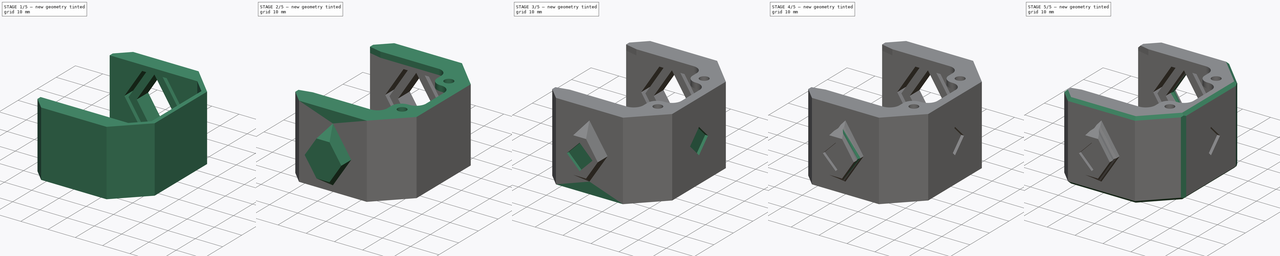
[diagram: build sequence overview — one tinted view per stage of 5, left to right]
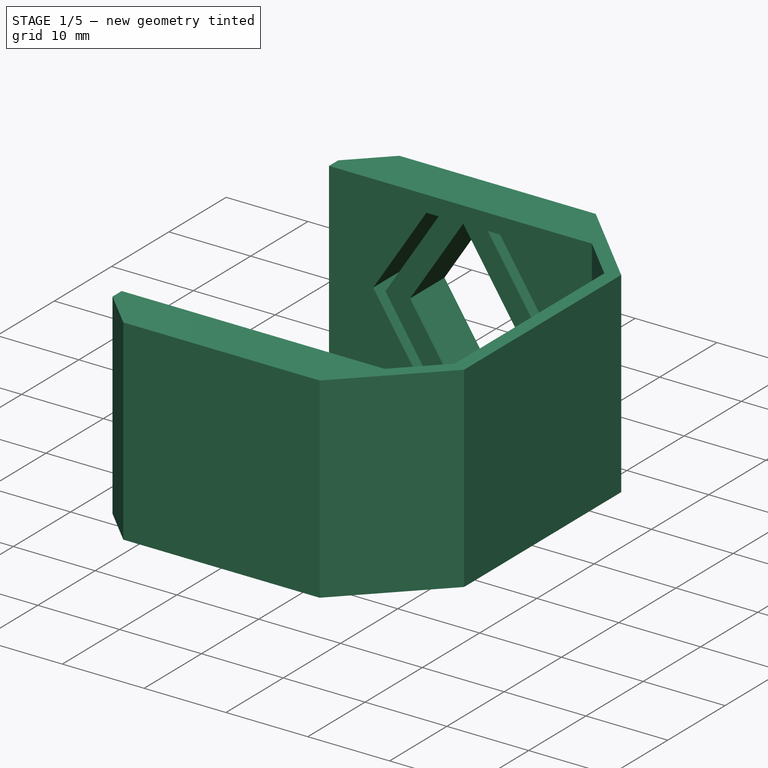
[diagram: stage 1 of 5 — iso view after this stage's code; geometry added in this stage tinted green]
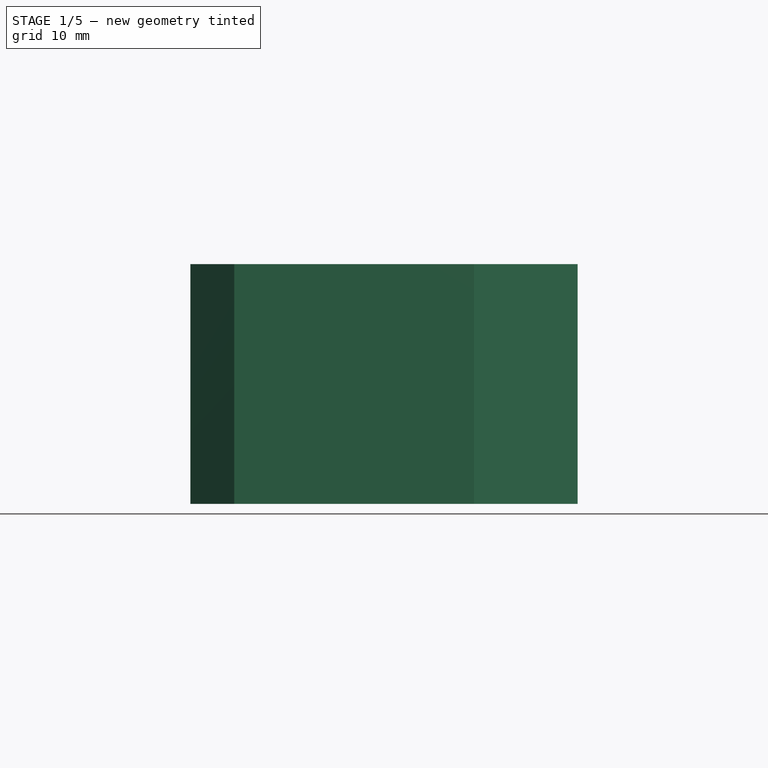
[diagram: stage 1 of 5 — front view after this stage's code; geometry added in this stage tinted green]
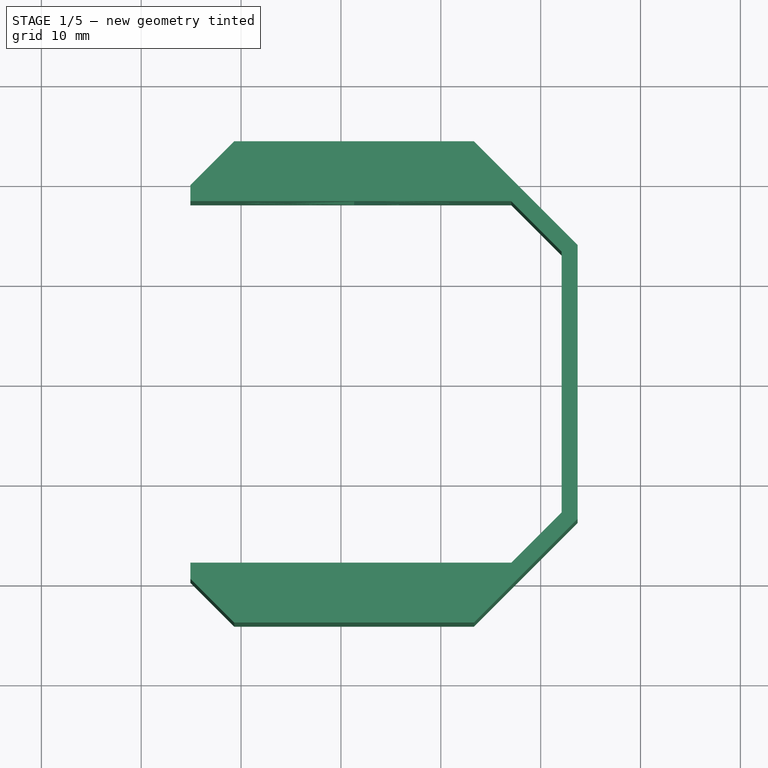
[diagram: stage 1 of 5 — top view after this stage's code; geometry added in this stage tinted green]
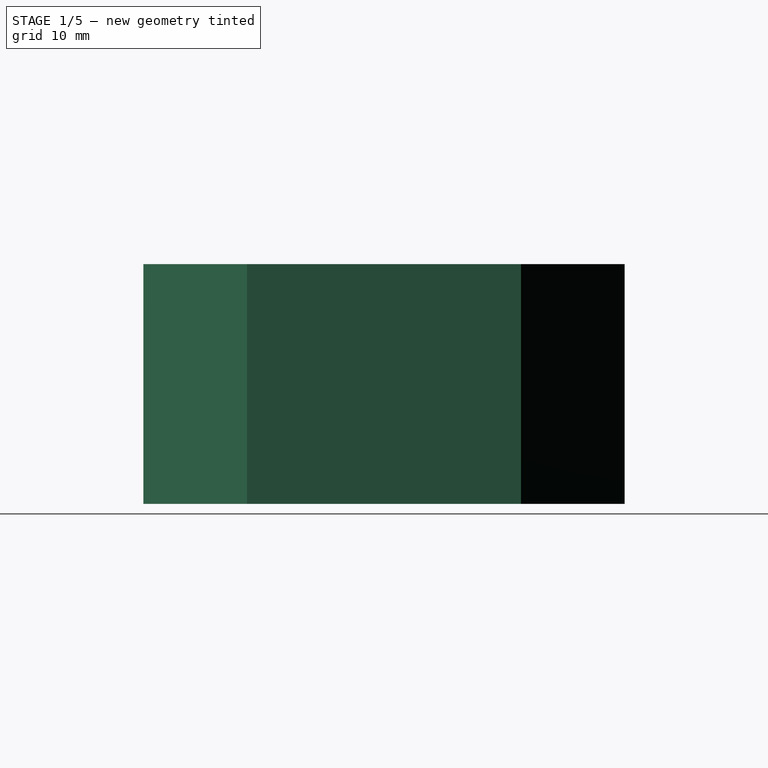
[diagram: stage 1 of 5 — right view after this stage's code; geometry added in this stage tinted green]
FCSTD DOCUMENT  (FreeCAD 1.1R20251031 (Git shallow))
Label: K93-10436-H7-L120_Tarantinorino_left
License: All rights reserved
LicenseURL: https://en.wikipedia.org/wiki/All_rights_reserved
objects: Sketcher::SketchObject×10, PartDesign::Chamfer×7, PartDesign::Pad×5, PartDesign::Pocket×5, App::FeaturePython×3, Part::Feature×3, PartDesign::Mirrored×2, App::Point×1, App::DocumentObjectGroupPython×1, App::VarSet×1, PartDesign::Fillet×1, PartDesign::Body×1
note: 82 computed .brp shape members not serialized (recipe doc carries the construction recipe); baked Part::Feature solids carry a one-line shape summary decoded from their .brp

FEATURE [App::Point] Origin001
  Role = Origin
FEATURE [App::FeaturePython] Layer  label="0"  # WARN: FeaturePython — macro-defined, semantics opaque (R4)
FEATURE [App::FeaturePython] Layer001  label="none"  # WARN: FeaturePython — macro-defined, semantics opaque (R4)
FEATURE [App::FeaturePython] Layer002  label="Shape2DView"  # WARN: FeaturePython — macro-defined, semantics opaque (R4)
FEATURE [App::DocumentObjectGroupPython] LayerContainer  label="Layers"  # scripted group (container) (typed FeaturePython)
  Group = -> [Layer,Layer002,Layer001]
FEATURE [Part::Feature] Wire
  shape: bbox 3.2 x 3.2 x 2e-07 mm, 0 faces, 0 solids (baked)
FEATURE [Part::Feature] Wire001
  shape: bbox 3.2 x 3.2 x 2e-07 mm, 0 faces, 0 solids (baked)
FEATURE [Part::Feature] Wire002
  shape: bbox 98.17 x 35.99 x 2e-07 mm, 0 faces, 0 solids (baked)
FEATURE [App::VarSet] VarSet
  depth_feet = 24
  gap = 0.1
  thickness_wall = 1.6
FEATURE [Sketcher::SketchObject] Sketch  label="panel_reference"
  ArcFitTolerance = 1e-06
  ExternalTypes = [0]
  FullyConstrained = true
  MakeInternals = false
  expr: Constraints[23] = VarSet.gap
  expr: Constraints[24] = VarSet.thickness_wall
  expr: Constraints[30] = VarSet.gap
  expr: Constraints[32] = VarSet.thickness_wall
  expr: Constraints[42] = VarSet.thickness_wall
  expr: Constraints[46] = VarSet.gap
  sketch-geometry (15):
    g0: LineSegment [constr] StartX=52.0042 StartY=0 StartZ=0 EndX=52.0042 EndY=12.17 EndZ=0
    g1: ArcOfCircle [constr] CenterX=50.0143 CenterY=12.1873 CenterZ=0 NormalX=0 NormalY=0 NormalZ=1 AngleXU=0 Radius=1.99 StartAngle=6.27451 EndAngle=7.06367
    g2: LineSegment [constr] StartX=51.4283 StartY=13.5875 StartZ=0 EndX=47.5958 EndY=17.42 EndZ=0
    g3: ArcOfCircle [constr] CenterX=46.1874 CenterY=16 CenterZ=0 NormalX=0 NormalY=0 NormalZ=1 AngleXU=0 Radius=2 StartAngle=0.789489 EndAngle=1.57449
    g4: LineSegment [constr] StartX=46.18 StartY=18 StartZ=0 EndX=0 EndY=18 EndZ=0
    g5: Circle [constr] CenterX=47.32 CenterY=11.94 CenterZ=0 NormalX=0 NormalY=0 NormalZ=1 AngleXU=0 Radius=1.61
    g6: LineSegment StartX=52.1042 StartY=0 StartZ=0 EndX=53.7042 EndY=0 EndZ=0
    g7: LineSegment StartX=52.1042 StartY=0 StartZ=0 EndX=52.1042 EndY=13.053 EndZ=0
    g8: LineSegment StartX=53.7042 StartY=0 StartZ=0 EndX=53.7042 EndY=13.7158 EndZ=0
    g9: LineSegment StartX=47.0572 StartY=18.1 StartZ=0 EndX=52.1042 EndY=13.053 EndZ=0
    g10: LineSegment StartX=43.32 StartY=24.1 StartZ=0 EndX=53.7042 EndY=13.7158 EndZ=0
    g11: LineSegment StartX=47.0572 StartY=18.1 StartZ=0 EndX=14.92 EndY=18.1 EndZ=0
    g12: LineSegment StartX=14.92 StartY=18.1 StartZ=0 EndX=14.92 EndY=19.7 EndZ=0
    g13: LineSegment StartX=14.92 StartY=19.7 StartZ=0 EndX=19.32 EndY=24.1 EndZ=0
    g14: LineSegment StartX=19.32 StartY=24.1 StartZ=0 EndX=43.32 EndY=24.1 EndZ=0
  constraints (48):
    c: Coincident(g3,g4)
    c: Coincident(g2,g3)
    c: Coincident(g1,g2)
    c: Coincident(g0,g1)
    c: PointOnObject(g4,g-2)
    c: Horizontal(g4)
    c: PointOnObject(g6,g-1)
    c: PointOnObject(g6,g-1)
    c: Distance(g4,g-1) = 18
    c: Vertical(g0)
    c: DistanceY(g-1,g0) = 12.17
    c: Distance(g1,g0) = 1.53
    c: Angle(g2,g0) = 2.35619
    c: Distance(g2,g2) = 5.42
    c: Distance(g3,g2) = 1.53
    c: DistanceX(g4,g4) = 46.18
    c: DistanceY(g-1,g2) = 17.42
    c: DistanceY(g-1,g5) = 11.94
    c: Diameter(g5) = 3.22
    c: DistanceX(g-1,g5) = 47.32
    c: Radius(g3) = 2
    c: Radius(g1) = 1.99
    c: PointOnObject(g0,g-1)
    c: Distance(g6,g0) = 0.1
    c: DistanceX(g6,g6) = 1.6
    c: Coincident(g7,g6)
    c: Vertical(g7)
    c: Coincident(g8,g6)
    c: Vertical(g8)
    c: Parallel(g2,g9)
    c: Distance(g9,g2) = 0.1
    c: Parallel(g9,g10)
    c: Distance(g10,g9) = 1.6
    c: Coincident(g9,g7)
    c: Coincident(g10,g8)
    c: Horizontal(g11)
    c: Coincident(g9,g11)
    c: Coincident(g12,g11)
    c: Vertical(g12)
    c: Coincident(g13,g12)
    c: Coincident(g14,g13)
    c: Horizontal(g14)
    c: Distance(g12,g12) = 1.6
    c: Angle(g12,g13) = 2.35619
    c: Distance(g11,g14) = 6
    c: Coincident(g10,g14)
    c: Distance(g11,g4) = 0.1
    c: DistanceX(g14,g14) = 24
FEATURE [PartDesign::Pad] Pad
  Direction = (0,0,1)
  Length = 24
  Length2 = 10
  Profile = -> Sketch
  ReferenceAxis = -> Sketch [N_Axis]
  Refine = true
  Reversed = true
  SideType = 0
  Suppressed = false
  Type = 0
  Type2 = 0
  expr: Length = VarSet.depth_feet
FEATURE [Sketcher::SketchObject] Sketch001
  ArcFitTolerance = 1e-06
  AttachmentSupport = -> [Pad]
  ExternalGeometry = -> [Pad]
  ExternalTypes = [0,0,0,0]
  FullyConstrained = true
  MakeInternals = false
  MapMode = 5
  Placement = pos=(0,24.1,0) rot=(0,0.707107,0.707107;3.14159rad)
  sketch-geometry (20):
    g0: GeomPoint [constr] X=-31.32 Y=0 Z=0
    g1: GeomPoint [constr] X=-43.32 Y=-12 Z=0
    g2: LineSegment [constr] StartX=-43.32 StartY=-12 StartZ=0 EndX=-19.32 EndY=-12 EndZ=0
    g3: LineSegment [constr] StartX=-31.32 StartY=0 StartZ=0 EndX=-31.32 EndY=-24 EndZ=0
    g4: GeomPoint [constr] X=-31.32 Y=-12 Z=0
    g5: LineSegment [constr] StartX=-43.32 StartY=-2 StartZ=0 EndX=-19.32 EndY=-2 EndZ=0
    g6: LineSegment [constr] StartX=-43.32 StartY=-22 StartZ=0 EndX=-19.32 EndY=-22 EndZ=0
    g7: LineSegment [constr] StartX=-42.32 StartY=-2 StartZ=0 EndX=-42.32 EndY=-22 EndZ=0
    g8: LineSegment [constr] StartX=-21.32 StartY=-2 StartZ=0 EndX=-21.32 EndY=-22 EndZ=0
    g9: GeomPoint [constr] X=-42.32 Y=-12 Z=0
    g10: GeomPoint [constr] X=-21.32 Y=-12 Z=0
    g11: LineSegment StartX=-31.32 StartY=-2 StartZ=0 EndX=-37.82 EndY=-12 EndZ=0
    g12: LineSegment StartX=-37.82 StartY=-12 StartZ=0 EndX=-31.32 EndY=-22 EndZ=0
    g13: LineSegment StartX=-31.32 StartY=-22 StartZ=0 EndX=-31.32 EndY=-2 EndZ=0
    g14: LineSegment StartX=-35.82 StartY=-2 StartZ=0 EndX=-34.32 EndY=-2 EndZ=0
    g15: LineSegment StartX=-34.32 StartY=-2 StartZ=0 EndX=-40.82 EndY=-12 EndZ=0
    g16: LineSegment StartX=-40.82 StartY=-12 StartZ=0 EndX=-34.32 EndY=-22 EndZ=0
    g17: LineSegment StartX=-34.32 StartY=-22 StartZ=0 EndX=-35.82 EndY=-22 EndZ=0
    g18: LineSegment StartX=-35.82 StartY=-22 StartZ=0 EndX=-42.32 EndY=-12 EndZ=0
    g19: LineSegment StartX=-42.32 StartY=-12 StartZ=0 EndX=-35.82 EndY=-2 EndZ=0
  constraints (52):
    c: Symmetric(g-4,g-4,g0)
    c: Symmetric(g-3,g-3,g1)
    c: Coincident(g2,g1)
    c: Symmetric(g-5,g-5,g2)
    c: Coincident(g3,g0)
    c: Symmetric(g-6,g-6,g3)
    c: Symmetric(g3,g3,g4)
    c: PointOnObject(g5,g-3)
    c: PointOnObject(g5,g-5)
    c: Horizontal(g5)
    c: PointOnObject(g6,g-3)
    c: PointOnObject(g6,g-5)
    c: Horizontal(g6)
    c: Distance(g6,g-6) = 2
    c: Distance(g-4,g5) = 2
    c: PointOnObject(g7,g5)
    c: PointOnObject(g7,g6)
    c: Vertical(g7)
    c: PointOnObject(g8,g5)
    c: PointOnObject(g8,g6)
    c: Vertical(g8)
    c: Distance(g-5,g8) = 2
    c: Distance(g7,g-3) = 1
    c: Symmetric(g7,g7,g9)
    c: Symmetric(g8,g8,g10)
    c: Symmetric(g5,g5,g11)
    c: PointOnObject(g11,g2)
    c: Coincident(g12,g11)
    c: PointOnObject(g12,g3)
    c: Coincident(g13,g12)
    c: Coincident(g13,g11)
    c: PointOnObject(g14,g5)
    c: PointOnObject(g14,g5)
    c: Coincident(g15,g14)
    c: PointOnObject(g15,g2)
    c: Coincident(g16,g15)
    c: PointOnObject(g16,g6)
    c: Coincident(g17,g16)
    c: PointOnObject(g17,g6)
    c: Coincident(g18,g17)
    c: PointOnObject(g18,g2)
    c: Coincident(g19,g18)
    c: Coincident(g19,g14)
    c: Parallel(g11,g15)
    c: Parallel(g19,g15)
    c: Parallel(g12,g16)
    c: Parallel(g16,g18)
    c: PointOnObject(g12,g6)
    c: PointOnObject(g18,g7)
    c: Distance(g15,g9) = 1.5
    c: Distance(g11,g15) = 3
    c: Distance(g11,g4) = 6.5
FEATURE [PartDesign::Pocket] Pocket
  BaseFeature = -> Pad
  Direction = (0,-1,2e-16)
  Length = 9.3
  Length2 = 5
  Profile = -> Sketch001
  ReferenceAxis = -> Sketch001 [N_Axis]
  Refine = true
  SideType = 0
  Suppressed = false
  Type = 2
  Type2 = 0
FEATURE [PartDesign::Mirrored] Mirrored
  BaseFeature = -> Pocket
  MirrorPlane = -> Pocket [Face12]
  Originals = -> [Pocket]
  Refine = true
  Suppressed = false
  TransformMode = 0
FEATURE [PartDesign::Mirrored] Mirrored001
  BaseFeature = -> Mirrored
  MirrorPlane = -> Mirrored [Face1]
  Originals = -> [Pad]
  Refine = true
  Suppressed = false
  TransformMode = 0
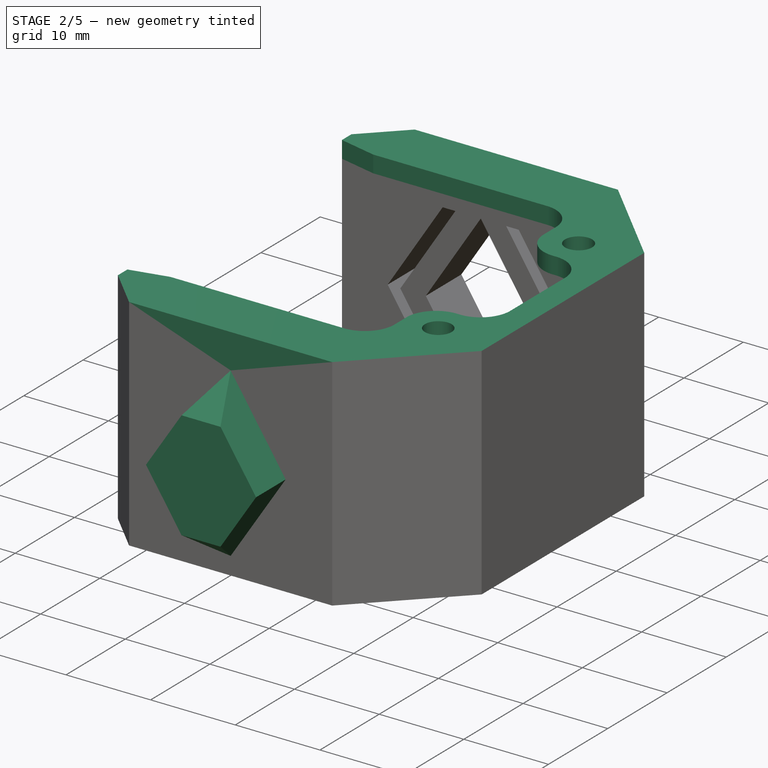
[diagram: stage 2 of 5 — iso view after this stage's code; geometry added in this stage tinted green]
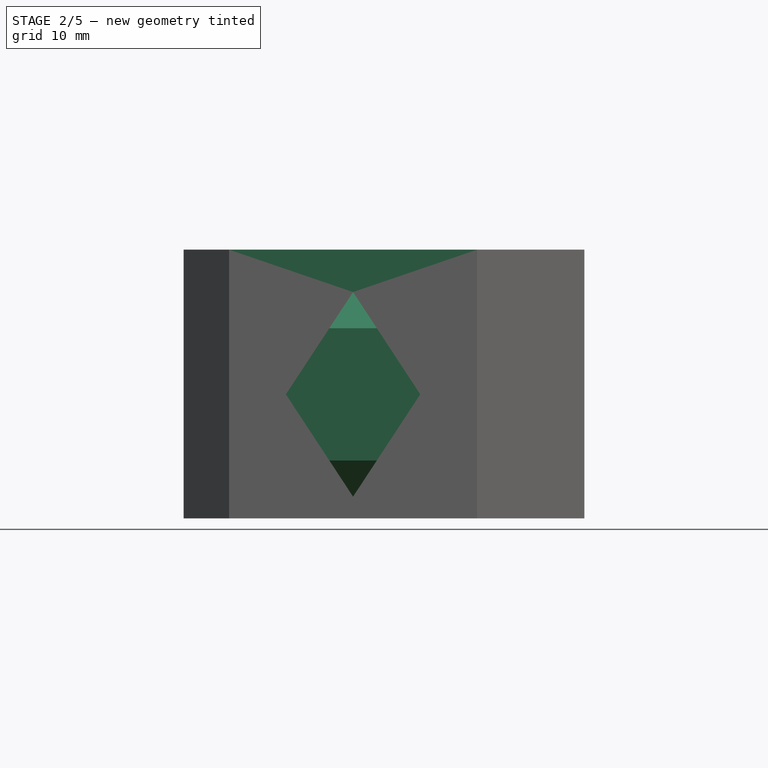
[diagram: stage 2 of 5 — front view after this stage's code; geometry added in this stage tinted green]
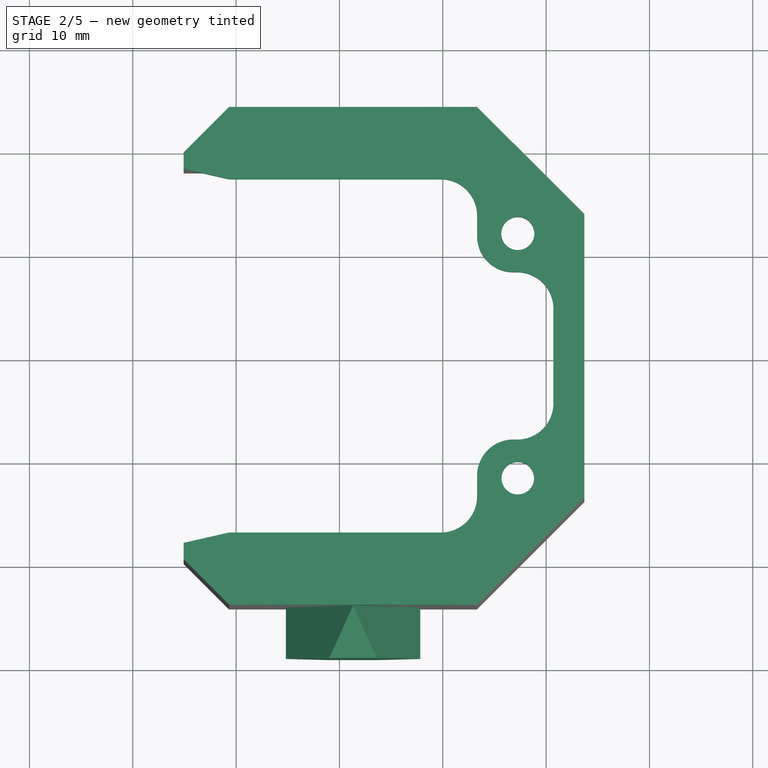
[diagram: stage 2 of 5 — top view after this stage's code; geometry added in this stage tinted green]
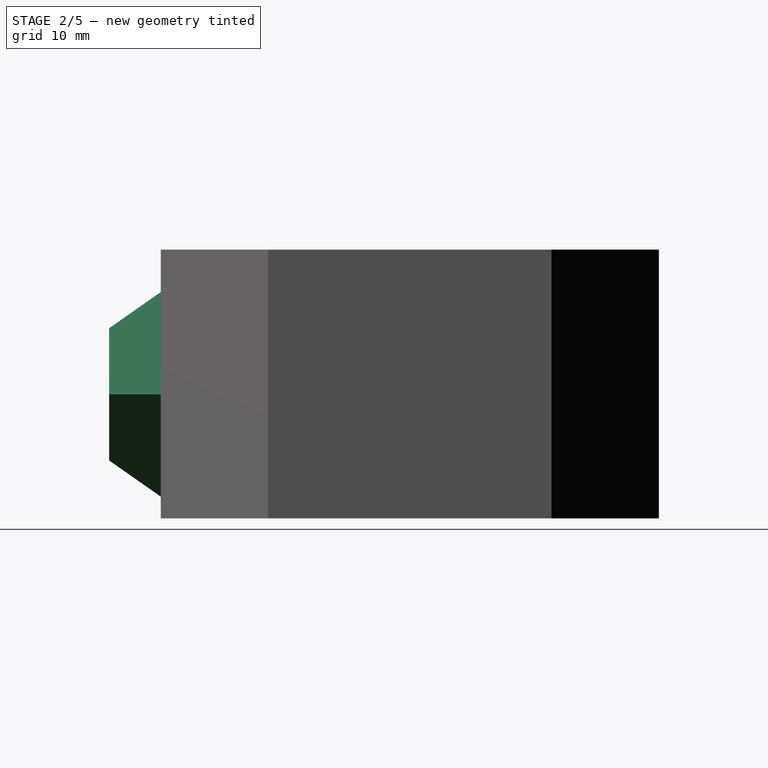
[diagram: stage 2 of 5 — right view after this stage's code; geometry added in this stage tinted green]
FEATURE [Sketcher::SketchObject] Sketch003
  ArcFitTolerance = 1e-06
  AttachmentSupport = -> [Mirrored001]
  ExternalGeometry = -> [Mirrored001]
  ExternalTypes = [0,0,0,0]
  FullyConstrained = true
  MakeInternals = false
  MapMode = 5
  Placement = pos=(0,-24.1,0) rot=(1,0,0;1.5708rad)
  sketch-geometry (10):
    g0: LineSegment [constr] StartX=21.52 StartY=0 StartZ=0 EndX=21.52 EndY=-24 EndZ=0
    g1: LineSegment [constr] StartX=41.12 StartY=0 StartZ=0 EndX=41.12 EndY=-24 EndZ=0
    g2: LineSegment [constr] StartX=19.32 StartY=-21.9 StartZ=0 EndX=43.32 EndY=-21.9 EndZ=0
    g3: LineSegment [constr] StartX=19.32 StartY=-2.1 StartZ=0 EndX=43.32 EndY=-2.1 EndZ=0
    g4: LineSegment [constr] StartX=21.52 StartY=-12 StartZ=0 EndX=41.12 EndY=-12 EndZ=0
    g5: LineSegment [constr] StartX=31.32 StartY=-2.1 StartZ=0 EndX=31.32 EndY=-21.9 EndZ=0
    g6: LineSegment StartX=24.82 StartY=-12 StartZ=0 EndX=31.32 EndY=-2.1 EndZ=0
    g7: LineSegment StartX=31.32 StartY=-2.1 StartZ=0 EndX=37.82 EndY=-12 EndZ=0
    g8: LineSegment StartX=24.82 StartY=-12 StartZ=0 EndX=31.32 EndY=-21.9 EndZ=0
    g9: LineSegment StartX=37.82 StartY=-12 StartZ=0 EndX=31.32 EndY=-21.9 EndZ=0
  constraints (30):
    c: PointOnObject(g0,g-4)
    c: PointOnObject(g0,g-6)
    c: Vertical(g0)
    c: PointOnObject(g1,g-4)
    c: PointOnObject(g1,g-6)
    c: Vertical(g1)
    c: PointOnObject(g2,g-3)
    c: PointOnObject(g2,g-5)
    c: Horizontal(g2)
    c: PointOnObject(g3,g-3)
    c: PointOnObject(g3,g-5)
    c: Horizontal(g3)
    c: Distance(g-6,g2) = 2.1
    c: Distance(g3,g-4) = 2.1
    c: Distance(g1,g-5) = 2.2
    c: Distance(g0,g-3) = 2.2
    c: Symmetric(g0,g0,g4)
    c: Symmetric(g1,g1,g4)
    c: Symmetric(g3,g3,g5)
    c: Symmetric(g2,g2,g5)
    c: PointOnObject(g6,g5)
    c: Coincident(g7,g6)
    c: Coincident(g9,g8)
    c: Symmetric(g6,g8,g4)
    c: Coincident(g9,g7)
    c: PointOnObject(g7,g4)
    c: Coincident(g6,g8)
    c: PointOnObject(g6,g3)
    c: Symmetric(g7,g6,g5)
    c: Distance(g7,g5) = 6.5
FEATURE [PartDesign::Pad] Pad002
  BaseFeature = -> Mirrored001
  Direction = (0,-1,2e-16)
  Length = 5
  Length2 = 10
  Profile = -> Sketch003
  ReferenceAxis = -> Sketch003 [N_Axis]
  Refine = true
  SideType = 0
  Suppressed = false
  Type = 0
  Type2 = 0
FEATURE [Sketcher::SketchObject] Sketch004
  ArcFitTolerance = 1e-06
  AttachmentSupport = -> [Origin]
  ExternalGeometry = -> [Pad002]
  ExternalTypes = [0,0,0,0]
  FullyConstrained = true
  MakeInternals = false
  MapMode = 5
  Placement = pos=(0,0,0) rot=(0.57735,0.57735,0.57735;2.0944rad)
  sketch-geometry (6):
    g0: LineSegment StartX=-24.1 StartY=-21.9 StartZ=0 EndX=-29.1 EndY=-18.399 EndZ=0
    g1: LineSegment StartX=-29.1 StartY=-18.399 StartZ=0 EndX=-29.1 EndY=-21.9 EndZ=0
    g2: LineSegment StartX=-29.1 StartY=-21.9 StartZ=0 EndX=-24.1 EndY=-21.9 EndZ=0
    g3: LineSegment StartX=-24.1 StartY=-2.1 StartZ=0 EndX=-29.1 EndY=-5.60104 EndZ=0
    g4: LineSegment StartX=-29.1 StartY=-2.1 StartZ=0 EndX=-29.1 EndY=-5.60104 EndZ=0
    g5: LineSegment StartX=-24.1 StartY=-2.1 StartZ=0 EndX=-29.1 EndY=-2.1 EndZ=0
  constraints (14):
    c: Coincident(g0,g-3)
    c: PointOnObject(g0,g-4)
    c: Coincident(g1,g0)
    c: Coincident(g1,g-4)
    c: Coincident(g2,g1)
    c: Coincident(g2,g0)
    c: Angle(g0,g2) = 0.610865
    c: Coincident(g3,g-5)
    c: PointOnObject(g3,g-6)
    c: Coincident(g4,g-6)
    c: Coincident(g4,g3)
    c: Coincident(g5,g3)
    c: Coincident(g5,g4)
    c: Angle(g5,g3) = 0.610865
FEATURE [PartDesign::Pocket] Pocket001
  BaseFeature = -> Pad002
  Direction = (-1,0,0)
  Length = 40
  Length2 = 5
  Profile = -> Sketch004
  ReferenceAxis = -> Sketch004 [N_Axis]
  Refine = true
  Reversed = true
  SideType = 0
  Suppressed = false
  Type = 0
  Type2 = 0
FEATURE [Sketcher::SketchObject] Sketch007  label="Frontface"
  ArcFitTolerance = 1e-06
  ExternalTypes = [0,0,0,0,0,0,0,0,0]
  FullyConstrained = true
  MakeInternals = false
  sketch-geometry (11):
    g0: LineSegment StartX=14.92 StartY=18.1 StartZ=0 EndX=19.32 EndY=17.1 EndZ=0
    g1: LineSegment StartX=19.32 StartY=17.1 StartZ=0 EndX=43.32 EndY=17.1 EndZ=0
    g2: LineSegment StartX=43.32 StartY=17.1 StartZ=0 EndX=43.32 EndY=8.1 EndZ=0
    g3: LineSegment StartX=43.32 StartY=8.1 StartZ=0 EndX=50.7042 EndY=8.1 EndZ=0
    g4: LineSegment StartX=50.7042 StartY=8.1 StartZ=0 EndX=50.7042 EndY=-8.1 EndZ=0
    g5: LineSegment StartX=50.7042 StartY=-8.1 StartZ=0 EndX=43.32 EndY=-8.1 EndZ=0
    g6: LineSegment StartX=43.32 StartY=-8.1 StartZ=0 EndX=43.32 EndY=-17.1 EndZ=0
    g7: LineSegment StartX=43.32 StartY=-17.1 StartZ=0 EndX=19.32 EndY=-17.1 EndZ=0
    g8: LineSegment StartX=19.32 StartY=-17.1 StartZ=0 EndX=14.92 EndY=-18.1 EndZ=0
    g9: Circle CenterX=47.26 CenterY=11.84 CenterZ=0 NormalX=0 NormalY=0 NormalZ=1 AngleXU=0 Radius=1.6
    g10: Circle CenterX=47.26 CenterY=-11.84 CenterZ=0 NormalX=0 NormalY=0 NormalZ=1 AngleXU=0 Radius=1.575
  constraints (32):
    c: Coincident(g0,g-5)
    c: Coincident(g1,g0)
    c: Coincident(g2,g1)
    c: Vertical(g2)
    c: Coincident(g3,g2)
    c: Vertical(g4)
    c: Coincident(g5,g4)
    c: Coincident(g6,g5)
    c: Horizontal(g7)
    c: Coincident(g8,g7)
    c: Coincident(g8,g-11)
    c: Vertical(g-4,g0)
    c: Vertical(g7,g-10)
    c: DistanceY(g0,g-4) = 7
    c: Horizontal(g1)
    c: DistanceY(g-10,g7) = 7
    c: Coincident(g6,g7)
    c: Vertical(g-9,g6)
    c: Vertical(g-6,g1)
    c: Vertical(g6)
    c: Horizontal(g3)
    c: Horizontal(g5)
    c: Coincident(g3,g4)
    c: DistanceY(g2,g2) = 9
    c: Distance(g-7,g4) = 3
    c: DistanceY(g6,g6) = 9
    c: Diameter(g9) = 3.2
    c: Distance(g9,g3) = 3.74
    c: Distance(g9,g2) = 3.94
    c: Diameter(g10) = 3.15
    c: Distance(g10,g5) = 3.74
    c: Distance(g10,g6) = 3.94
FEATURE [PartDesign::Pad] Pad003
  BaseFeature = -> Pocket001
  Direction = (0,0,1)
  Length = 2
  Length2 = 10
  Profile = -> Sketch007
  ReferenceAxis = -> Sketch007 [N_Axis]
  Refine = true
  SideType = 0
  Suppressed = false
  Type = 0
  Type2 = 0
FEATURE [PartDesign::Fillet] Fillet
  Base = -> Pad003 [Edge94,Edge92,Edge88,Edge90,Edge96,Edge98]
  BaseFeature = -> Pad003
  Radius = 3.5
  Refine = true
  SupportTransform = false
  Suppressed = false
  UseAllEdges = false
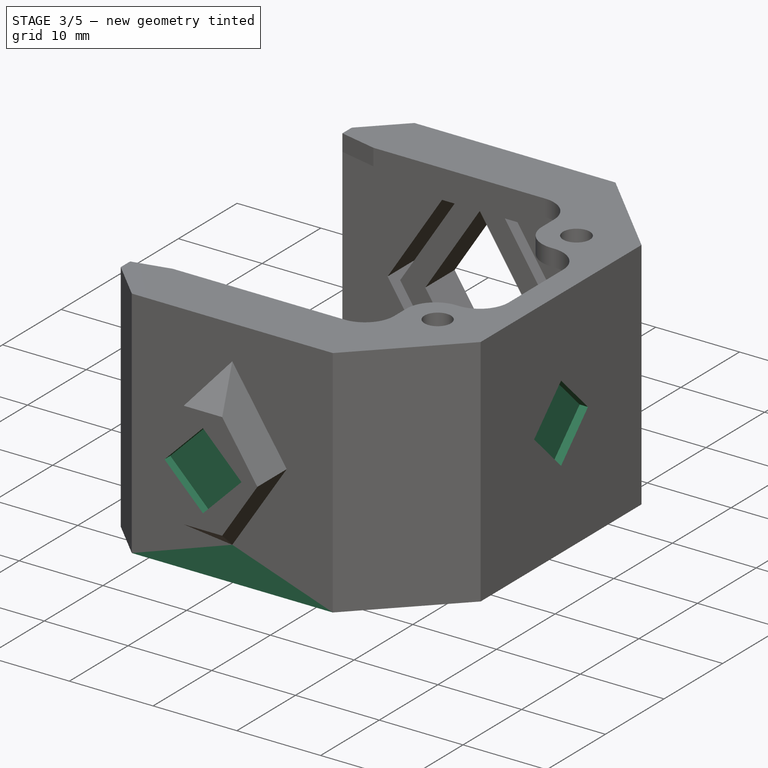
[diagram: stage 3 of 5 — iso view after this stage's code; geometry added in this stage tinted green]
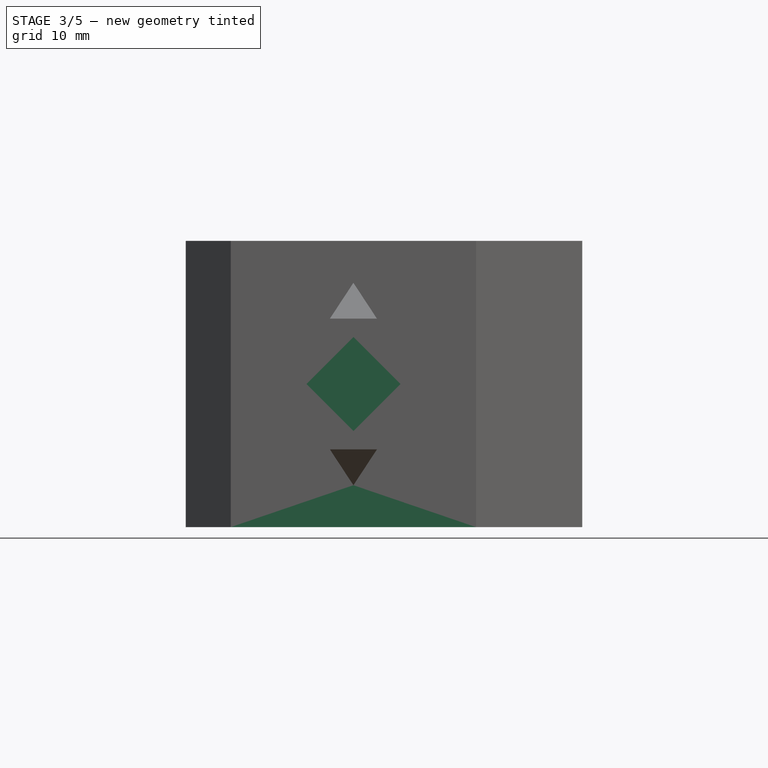
[diagram: stage 3 of 5 — front view after this stage's code; geometry added in this stage tinted green]
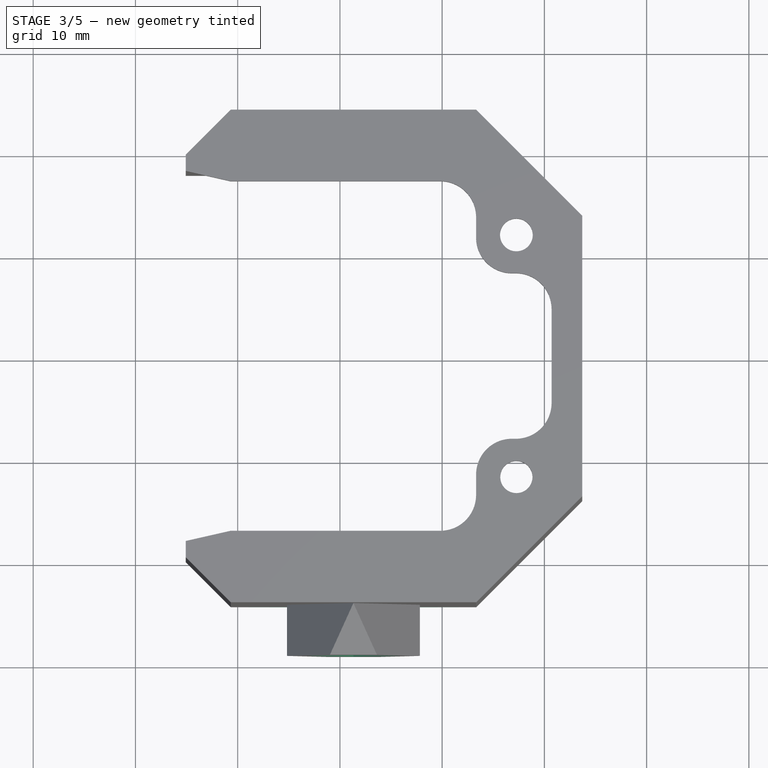
[diagram: stage 3 of 5 — top view after this stage's code; geometry added in this stage tinted green]
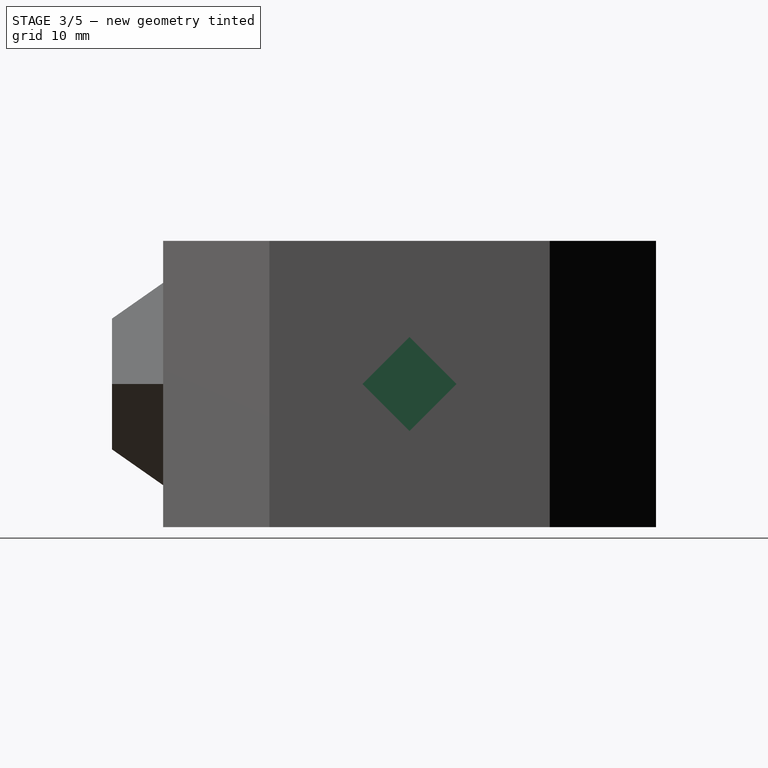
[diagram: stage 3 of 5 — right view after this stage's code; geometry added in this stage tinted green]
FEATURE [PartDesign::Chamfer] Chamfer002
  Angle = 45
  Base = -> Fillet [Edge136,Edge134,Edge129,Edge132]
  BaseFeature = -> Fillet
  ChamferType = 0
  FlipDirection = false
  Refine = true
  Size = 1
  Size2 = 1
  SupportTransform = false
  Suppressed = false
  UseAllEdges = false
FEATURE [Sketcher::SketchObject] Sketch008
  ArcFitTolerance = 1e-06
  AttachmentSupport = -> [Chamfer002]
  ExternalGeometry = -> [Chamfer002]
  ExternalTypes = [0,0,0,0,0,0,0,0,0,0,0,0,0,0]
  FullyConstrained = true
  MakeInternals = false
  MapMode = 5
  Placement = pos=(0,0,-24) rot=(1,0,0;3.14159rad)
FEATURE [PartDesign::Pad] Pad004
  BaseFeature = -> Chamfer002
  Direction = (0,0,-1)
  Length = 2
  Length2 = 10
  Profile = -> Sketch008
  ReferenceAxis = -> Sketch008 [N_Axis]
  Refine = true
  SideType = 0
  Suppressed = false
  Type = 0
  Type2 = 0
FEATURE [Sketcher::SketchObject] Sketch009
  ArcFitTolerance = 1e-06
  AttachmentSupport = -> [Pad004]
  ExternalGeometry = -> [Pad004]
  ExternalTypes = [0,0,0,0,0,0]
  FullyConstrained = true
  MakeInternals = false
  MapMode = 5
  Placement = pos=(0,-29.1,0) rot=(1,0,0;1.5708rad)
  sketch-geometry (9):
    g0: LineSegment [constr] StartX=29.0213 StartY=-5.60104 StartZ=0 EndX=33.6186 EndY=-18.399 EndZ=0
    g1: LineSegment [constr] StartX=29.0213 StartY=-18.399 StartZ=0 EndX=33.6186 EndY=-5.60104 EndZ=0
    g2: LineSegment [constr] StartX=24.82 StartY=-12 StartZ=0 EndX=37.82 EndY=-12 EndZ=0
    g3: GeomPoint [constr] X=31.32 Y=-12 Z=0
    g4: LineSegment StartX=35.9162 StartY=-12 StartZ=0 EndX=31.32 EndY=-7.40381 EndZ=0
    g5: LineSegment StartX=31.32 StartY=-7.40381 StartZ=0 EndX=26.7238 EndY=-12 EndZ=0
    g6: LineSegment StartX=26.7238 StartY=-12 StartZ=0 EndX=31.32 EndY=-16.5962 EndZ=0
    g7: LineSegment StartX=31.32 StartY=-16.5962 StartZ=0 EndX=35.9162 EndY=-12 EndZ=0
    g8: Circle [constr] CenterX=31.32 CenterY=-12 CenterZ=0 NormalX=0 NormalY=0 NormalZ=1 AngleXU=0 Radius=4.59619
  constraints (21):
    c: Coincident(g0,g-4)
    c: Coincident(g0,g-7)
    c: Coincident(g1,g-8)
    c: Coincident(g1,g-5)
    c: Coincident(g2,g-8)
    c: Coincident(g2,g-6)
    c: Symmetric(g2,g2,g3)
    c: Coincident(g4,g5)
    c: Coincident(g5,g6)
    c: Coincident(g6,g7)
    c: Coincident(g7,g4)
    c: Equal(g4,g5)
    c: Equal(g4,g6)
    c: Equal(g4,g7)
    c: PointOnObject(g4,g8)
    c: PointOnObject(g5,g8)
    c: PointOnObject(g6,g8)
    c: PointOnObject(g7,g8)
    c: Coincident(g8,g3)
    c: PointOnObject(g7,g2)
    c: Distance(g7,g5) = 6.5
FEATURE [PartDesign::Pocket] Pocket003
  BaseFeature = -> Pad004
  Direction = (0,1,-2e-16)
  Length = 1
  Length2 = 5
  Profile = -> Sketch009
  ReferenceAxis = -> Sketch009 [N_Axis]
  Refine = true
  SideType = 0
  Suppressed = false
  Type = 0
  Type2 = 0
FEATURE [Sketcher::SketchObject] Sketch010
  ArcFitTolerance = 1e-06
  AttachmentSupport = -> [Pocket003]
  ExternalGeometry = -> [Pocket003]
  ExternalTypes = [0,0,0,0]
  FullyConstrained = true
  MakeInternals = false
  MapMode = 5
  Placement = pos=(53.7042,0,0) rot=(0.57735,0.57735,0.57735;2.0944rad)
  sketch-geometry (8):
    g0: LineSegment [constr] StartX=-13.7158 StartY=2 StartZ=0 EndX=13.7158 EndY=-26 EndZ=0
    g1: LineSegment [constr] StartX=13.7158 StartY=2 StartZ=0 EndX=-13.7158 EndY=-26 EndZ=0
    g2: GeomPoint [constr] X=1.1e-15 Y=-12 Z=0
    g3: LineSegment StartX=0 StartY=-16.5962 StartZ=0 EndX=4.59619 EndY=-12 EndZ=0
    g4: LineSegment StartX=4.59619 StartY=-12 StartZ=0 EndX=1.8e-15 EndY=-7.40381 EndZ=0
    g5: LineSegment StartX=1.8e-15 StartY=-7.40381 StartZ=0 EndX=-4.59619 EndY=-12 EndZ=0
    g6: LineSegment StartX=-4.59619 StartY=-12 StartZ=0 EndX=0 EndY=-16.5962 EndZ=0
    g7: Circle [constr] CenterX=1.1e-15 CenterY=-12 CenterZ=0 NormalX=0 NormalY=0 NormalZ=1 AngleXU=0 Radius=4.59619
  constraints (19):
    c: Coincident(g0,g-4)
    c: Coincident(g0,g-6)
    c: Coincident(g1,g-5)
    c: Coincident(g1,g-6)
    c: Symmetric(g1,g1,g2)
    c: Coincident(g3,g4)
    c: Coincident(g4,g5)
    c: Coincident(g5,g6)
    c: Coincident(g6,g3)
    c: Equal(g3,g4)
    c: Equal(g3,g5)
    c: Equal(g3,g6)
    c: PointOnObject(g3,g7)
    c: PointOnObject(g4,g7)
    c: PointOnObject(g5,g7)
    c: PointOnObject(g6,g7)
    c: Coincident(g7,g2)
    c: PointOnObject(g6,g-2)
    c: Distance(g3,g5) = 6.5
FEATURE [PartDesign::Pocket] Pocket004
  BaseFeature = -> Pocket003
  Direction = (-1,0,0)
  Length = 1
  Length2 = 5
  Profile = -> Sketch010
  ReferenceAxis = -> Sketch010 [N_Axis]
  Refine = true
  SideType = 0
  Suppressed = false
  Type = 0
  Type2 = 0
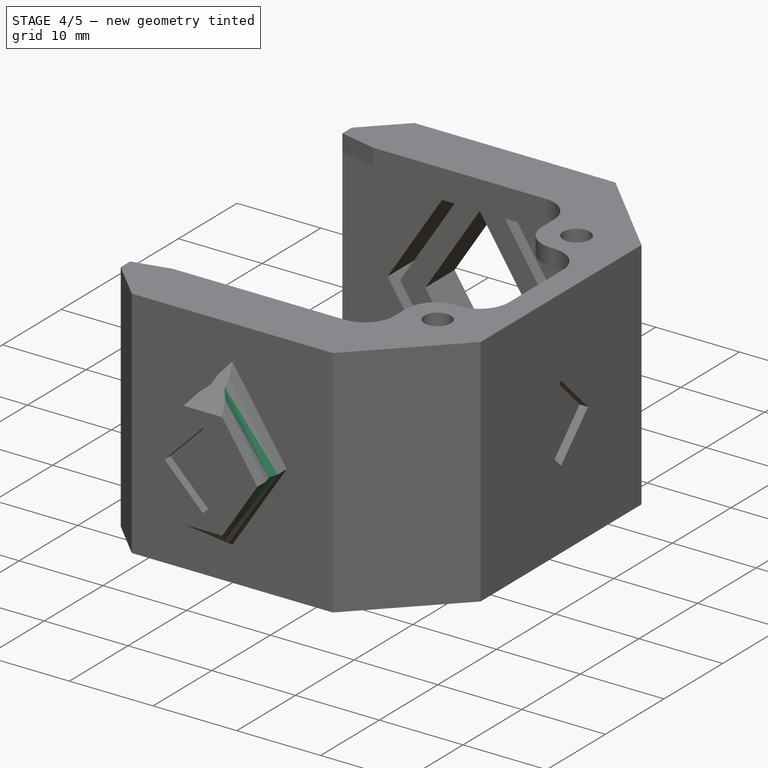
[diagram: stage 4 of 5 — iso view after this stage's code; geometry added in this stage tinted green]
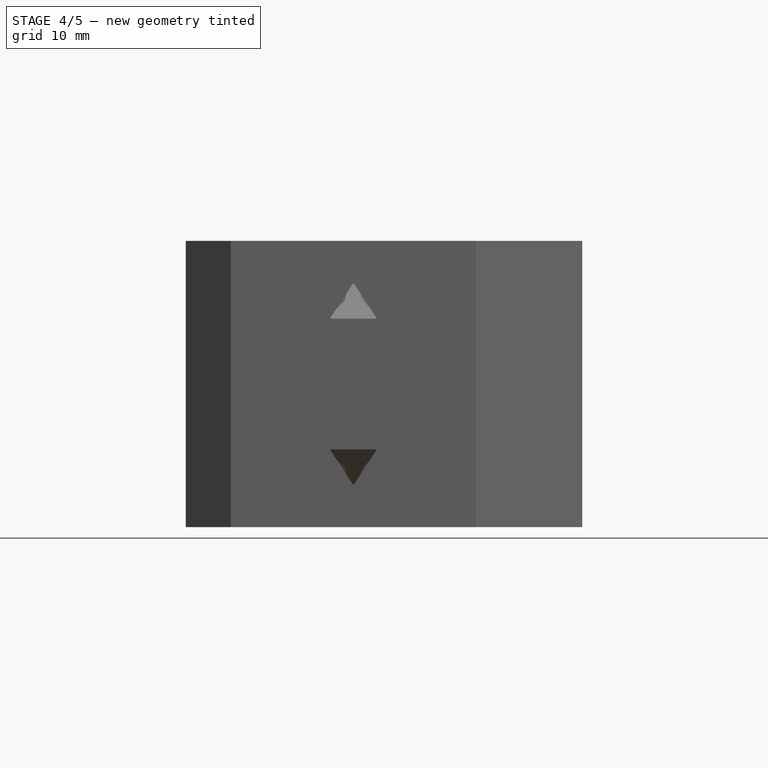
[diagram: stage 4 of 5 — front view after this stage's code; geometry added in this stage tinted green]
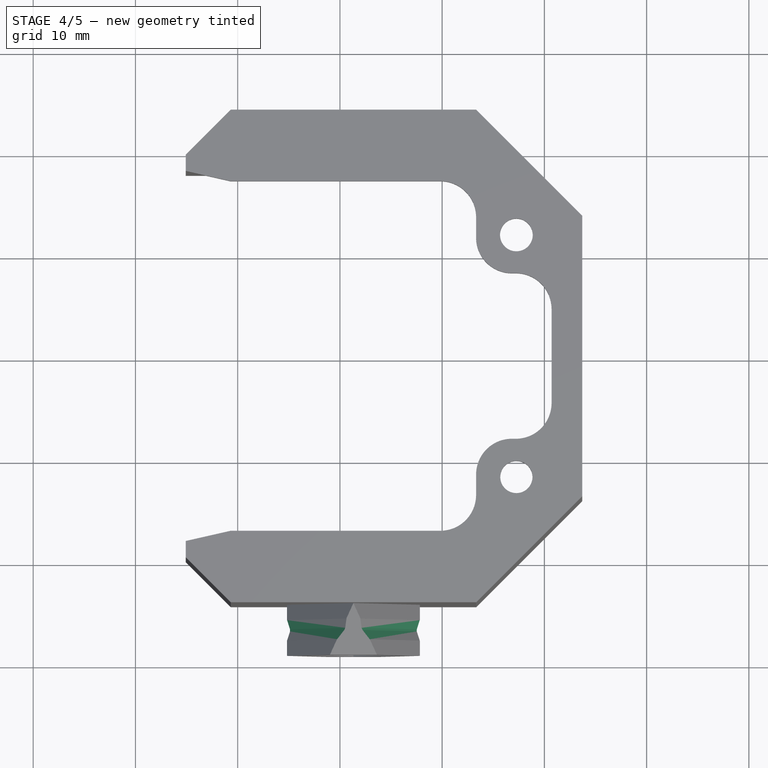
[diagram: stage 4 of 5 — top view after this stage's code; geometry added in this stage tinted green]
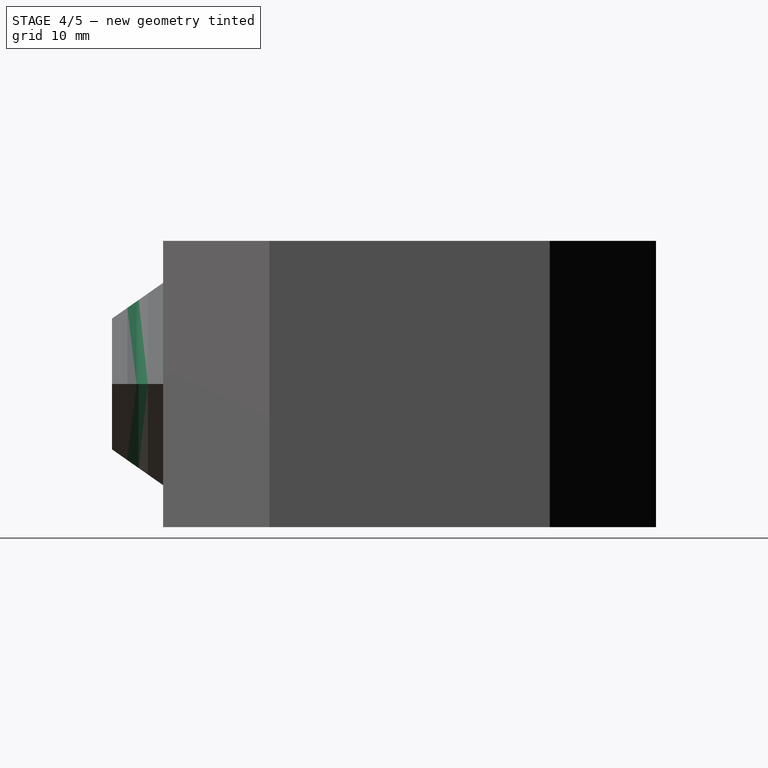
[diagram: stage 4 of 5 — right view after this stage's code; geometry added in this stage tinted green]
FEATURE [Sketcher::SketchObject] Sketch011  label="Sketch011_notch"
  ArcFitTolerance = 1e-06
  AttachmentOffset = pos=(0,0,-2.5) rot=(0,0,1;0rad)
  AttachmentSupport = -> [Pocket004]
  ExternalGeometry = -> [Pocket004]
  ExternalTypes = [0,0,0,0]
  FullyConstrained = true
  MakeInternals = false
  MapMode = 5
  Placement = pos=(0,-26.6,-6e-16) rot=(1,0,0;1.5708rad)
  sketch-geometry (10):
    g0: LineSegment StartX=24.82 StartY=-12 StartZ=0 EndX=31.32 EndY=-2.1 EndZ=0
    g1: LineSegment StartX=31.32 StartY=-2.1 StartZ=0 EndX=37.82 EndY=-12 EndZ=0
    g2: LineSegment StartX=37.82 StartY=-12 StartZ=0 EndX=31.32 EndY=-21.9 EndZ=0
    g3: LineSegment StartX=31.32 StartY=-21.9 StartZ=0 EndX=24.82 EndY=-12 EndZ=0
    g4: LineSegment [constr] StartX=31.32 StartY=-2.1 StartZ=0 EndX=31.32 EndY=-21.9 EndZ=0
    g5: LineSegment [constr] StartX=24.82 StartY=-12 StartZ=0 EndX=37.82 EndY=-12 EndZ=0
    g6: LineSegment StartX=25.12 StartY=-12 StartZ=0 EndX=31.32 EndY=-2.55692 EndZ=0
    g7: LineSegment StartX=31.32 StartY=-2.55692 StartZ=0 EndX=37.52 EndY=-12 EndZ=0
    g8: LineSegment StartX=37.52 StartY=-12 StartZ=0 EndX=31.32 EndY=-21.4431 EndZ=0
    g9: LineSegment StartX=31.32 StartY=-21.4431 StartZ=0 EndX=25.12 EndY=-12 EndZ=0
  constraints (24):
    c: Coincident(g0,g-4)
    c: Coincident(g0,g-3)
    c: Coincident(g1,g0)
    c: Coincident(g1,g-5)
    c: Coincident(g2,g1)
    c: Coincident(g2,g-6)
    c: Coincident(g3,g2)
    c: Coincident(g3,g0)
    c: Coincident(g4,g0)
    c: Coincident(g4,g2)
    c: Coincident(g5,g0)
    c: Coincident(g5,g1)
    c: PointOnObject(g6,g5)
    c: PointOnObject(g6,g4)
    c: Coincident(g7,g6)
    c: PointOnObject(g7,g5)
    c: Coincident(g8,g7)
    c: PointOnObject(g8,g4)
    c: Coincident(g9,g8)
    c: Coincident(g9,g6)
    c: Parallel(g0,g6)
    c: Parallel(g7,g1)
    c: Parallel(g2,g8)
    c: Distance(g0,g6) = 0.3
FEATURE [PartDesign::Pocket] Pocket005
  BaseFeature = -> Pocket004
  Direction = (0,1,-2e-16)
  Length = 2
  Length2 = 2
  Profile = -> Sketch011
  ReferenceAxis = -> Sketch011 [N_Axis]
  Refine = true
  SideType = 2
  Suppressed = false
  Type = 0
  Type2 = 0
FEATURE [PartDesign::Chamfer] Chamfer
  Angle = 75
  Base = -> Pocket005 [Edge191,Edge192,Edge190,Edge189]
  BaseFeature = -> Pocket005
  ChamferType = 2
  FlipDirection = false
  Refine = true
  Size = 0.24
  Size2 = 0.3
  SupportTransform = false
  Suppressed = false
  UseAllEdges = false
FEATURE [PartDesign::Chamfer] Chamfer003
  Angle = 75
  Base = -> Chamfer [Edge48,Edge49]
  BaseFeature = -> Chamfer
  ChamferType = 2
  FlipDirection = false
  Refine = true
  Size = 0.24
  Size2 = 1
  SupportTransform = false
  Suppressed = false
  UseAllEdges = false
FEATURE [PartDesign::Chamfer] Chamfer004
  Angle = 75
  Base = -> Chamfer003 [Edge44,Edge43]
  BaseFeature = -> Chamfer003
  ChamferType = 2
  FlipDirection = false
  Refine = true
  Size = 0.24
  Size2 = 1
  SupportTransform = false
  Suppressed = false
  UseAllEdges = false
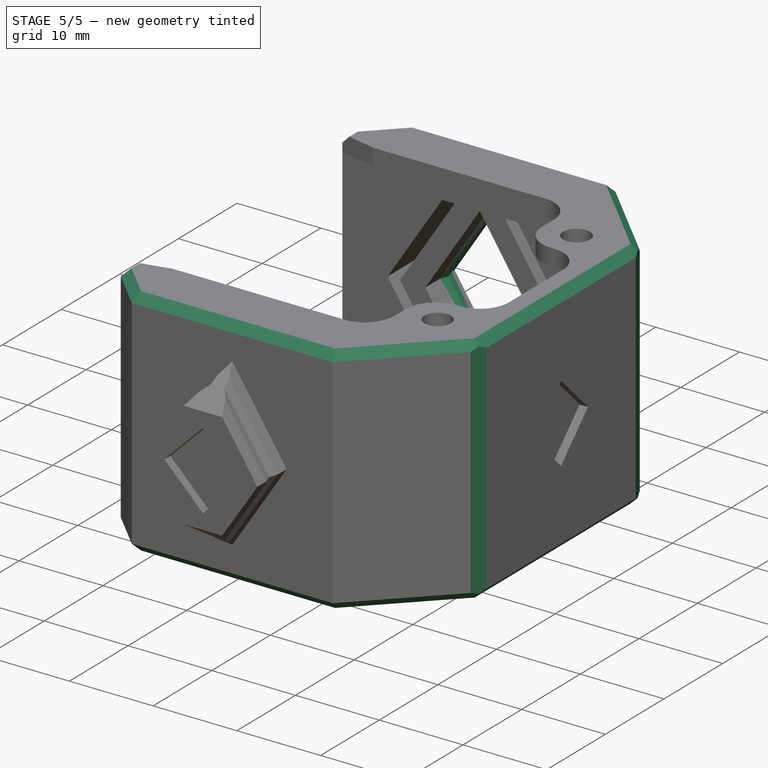
[diagram: stage 5 of 5 — iso view after this stage's code; geometry added in this stage tinted green]
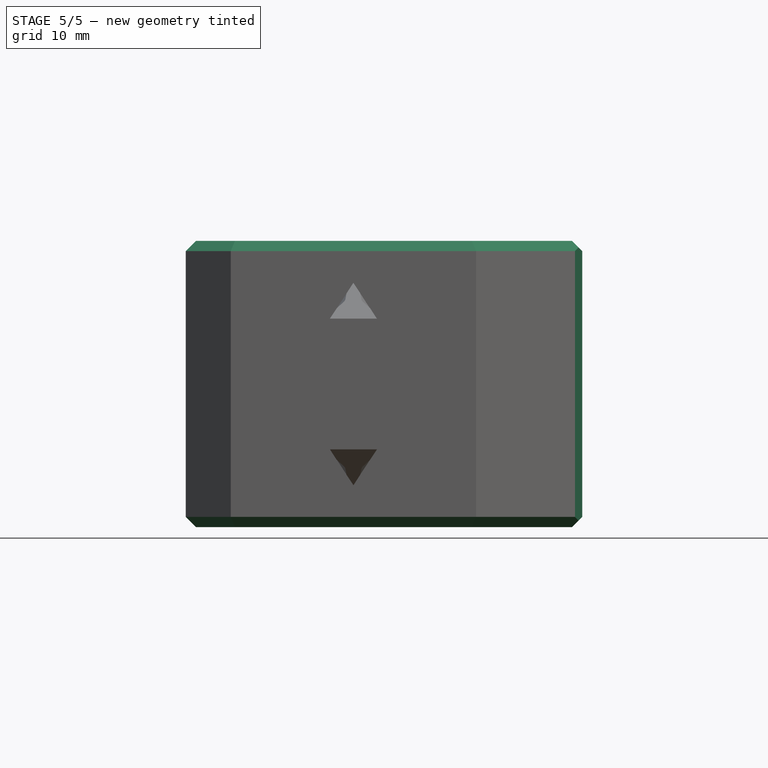
[diagram: stage 5 of 5 — front view after this stage's code; geometry added in this stage tinted green]
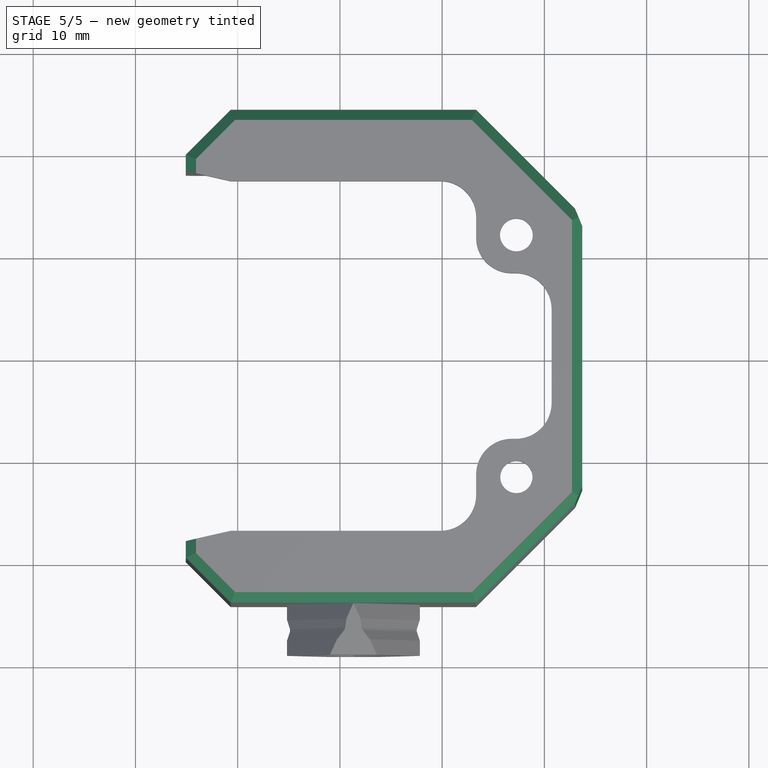
[diagram: stage 5 of 5 — top view after this stage's code; geometry added in this stage tinted green]
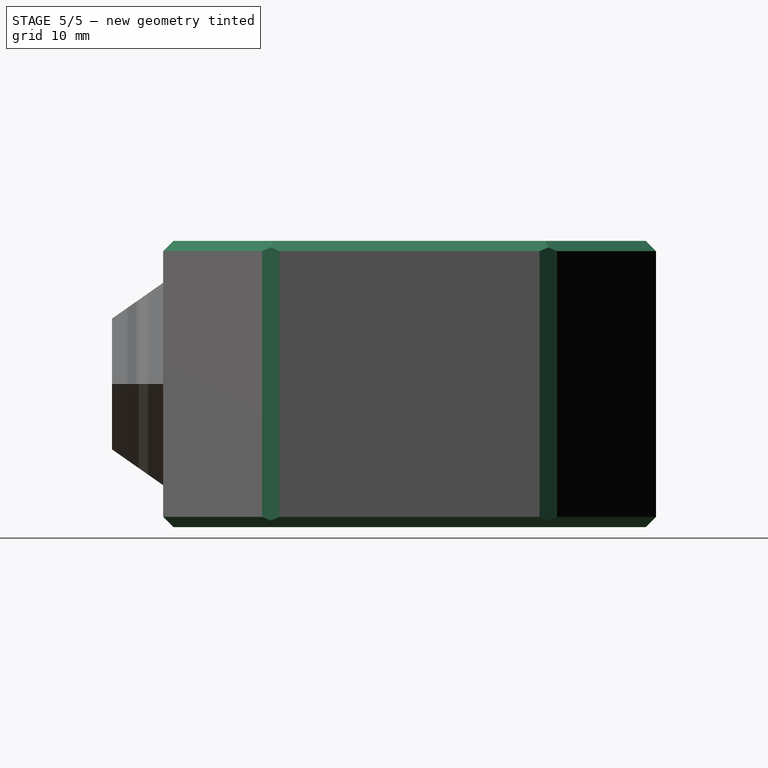
[diagram: stage 5 of 5 — right view after this stage's code; geometry added in this stage tinted green]
FEATURE [Sketcher::SketchObject] Sketch012
  ArcFitTolerance = 1e-06
  AttachmentOffset = pos=(0,0,-2.5) rot=(0,0,1;0rad)
  AttachmentSupport = -> [Chamfer004]
  ExternalGeometry = -> [Chamfer004]
  ExternalTypes = [0,0,0,0]
  FullyConstrained = true
  MakeInternals = false
  MapMode = 5
  Placement = pos=(0,21.6,6e-16) rot=(0,0.707107,0.707107;3.14159rad)
  sketch-geometry (10):
    g0: LineSegment StartX=-37.82 StartY=-12 StartZ=0 EndX=-31.32 EndY=-2 EndZ=0
    g1: LineSegment StartX=-24.82 StartY=-12 StartZ=0 EndX=-31.32 EndY=-2 EndZ=0
    g2: LineSegment StartX=-31.32 StartY=-22 StartZ=0 EndX=-24.82 EndY=-12 EndZ=0
    g3: LineSegment StartX=-37.82 StartY=-12 StartZ=0 EndX=-31.32 EndY=-22 EndZ=0
    g4: LineSegment [constr] StartX=-31.32 StartY=-2 StartZ=0 EndX=-31.32 EndY=-22 EndZ=0
    g5: LineSegment [constr] StartX=-37.82 StartY=-12 StartZ=0 EndX=-24.82 EndY=-12 EndZ=0
    g6: LineSegment StartX=-37.52 StartY=-12 StartZ=0 EndX=-31.32 EndY=-2.46154 EndZ=0
    g7: LineSegment StartX=-31.32 StartY=-2.46154 StartZ=0 EndX=-25.12 EndY=-12 EndZ=0
    g8: LineSegment StartX=-25.12 StartY=-12 StartZ=0 EndX=-31.32 EndY=-21.5385 EndZ=0
    g9: LineSegment StartX=-31.32 StartY=-21.5385 StartZ=0 EndX=-37.52 EndY=-12 EndZ=0
  constraints (24):
    c: Coincident(g0,g-4)
    c: Coincident(g0,g-3)
    c: Coincident(g1,g-5)
    c: Coincident(g1,g0)
    c: Coincident(g2,g-6)
    c: Coincident(g2,g1)
    c: Coincident(g3,g0)
    c: Coincident(g3,g2)
    c: Coincident(g4,g0)
    c: Coincident(g4,g2)
    c: Coincident(g5,g0)
    c: Coincident(g5,g1)
    c: PointOnObject(g6,g5)
    c: PointOnObject(g6,g4)
    c: Coincident(g7,g6)
    c: PointOnObject(g7,g5)
    c: Coincident(g8,g7)
    c: PointOnObject(g8,g4)
    c: Coincident(g9,g8)
    c: Coincident(g9,g6)
    c: Parallel(g3,g9)
    c: Parallel(g8,g2)
    c: Parallel(g7,g1)
    c: Distance(g6,g0) = 0.3
FEATURE [PartDesign::Pad] Pad005
  BaseFeature = -> Chamfer004
  Direction = (0,1,-2e-16)
  Length = 2
  Length2 = 10
  Profile = -> Sketch012
  ReferenceAxis = -> Sketch012 [N_Axis]
  Refine = true
  SideType = 2
  Suppressed = false
  Type = 0
  Type2 = 0
FEATURE [PartDesign::Chamfer] Chamfer005
  Angle = 75
  Base = -> Pad005 [Edge265,Edge268,Edge266,Edge267,Edge262,Edge261,Edge264,Edge263]
  BaseFeature = -> Pad005
  ChamferType = 2
  FlipDirection = false
  Refine = true
  Size = 0.24
  Size2 = 1
  SupportTransform = false
  Suppressed = false
  UseAllEdges = false
FEATURE [PartDesign::Chamfer] Chamfer006
  Angle = 45
  Base = -> Chamfer005 [Edge160,Edge79,Edge161,Edge162,Edge163,Edge164,Edge165,Edge166,Edge167,Edge85,Edge86,Edge87,Edge88,Edge81,Edge93,Edge82,Edge83,Edge84]
  BaseFeature = -> Chamfer005
  ChamferType = 0
  FlipDirection = false
  Refine = true
  Size = 1
  Size2 = 1
  SupportTransform = false
  Suppressed = false
  UseAllEdges = false
FEATURE [PartDesign::Chamfer] Chamfer007
  Angle = 45
  Base = -> Chamfer006 [Edge176,Edge178]
  BaseFeature = -> Chamfer006
  ChamferType = 0
  FlipDirection = false
  Refine = true
  Size = 1
  Size2 = 1
  SupportTransform = false
  Suppressed = false
  UseAllEdges = false
FEATURE [PartDesign::Body] Body
  AllowCompound = true
  Group = -> [Sketch,Pad,Sketch001,Pocket,Mirrored,Mirrored001,Sketch003,Pad002,Sketch004,Pocket001,Sketch007,Pad003,Fillet,Chamfer002,Sketch008,Pad004,Sketch009,Pocket003,Sketch010,Pocket004,Sketch011,Pocket005,Chamfer,Chamfer003,Chamfer004,Sketch012,Pad005,Chamfer005,Chamfer006,Chamfer007]
  Origin = -> Origin
  Tip = -> Chamfer007
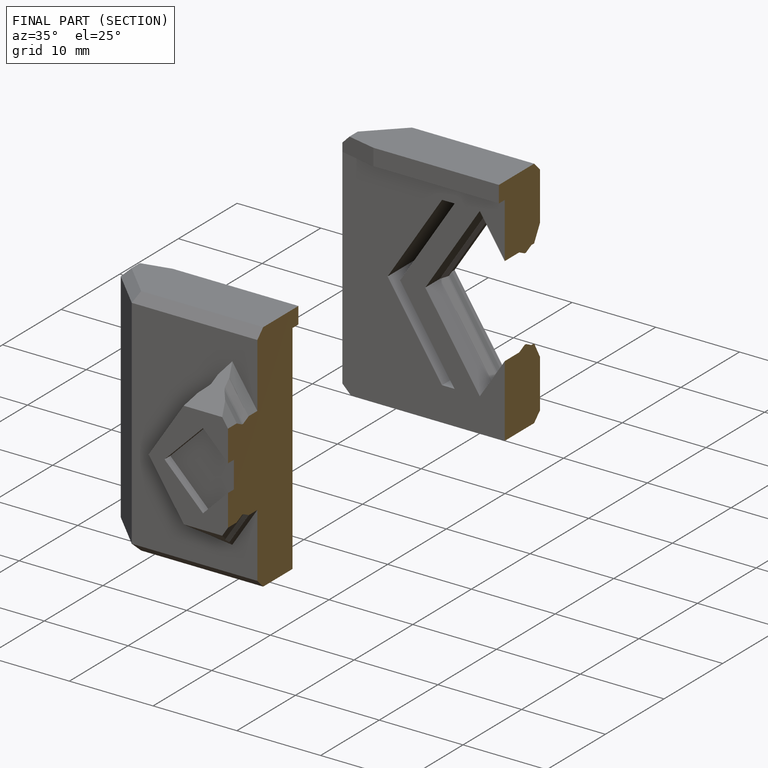
[diagram: finished part — half-section view (interior)]
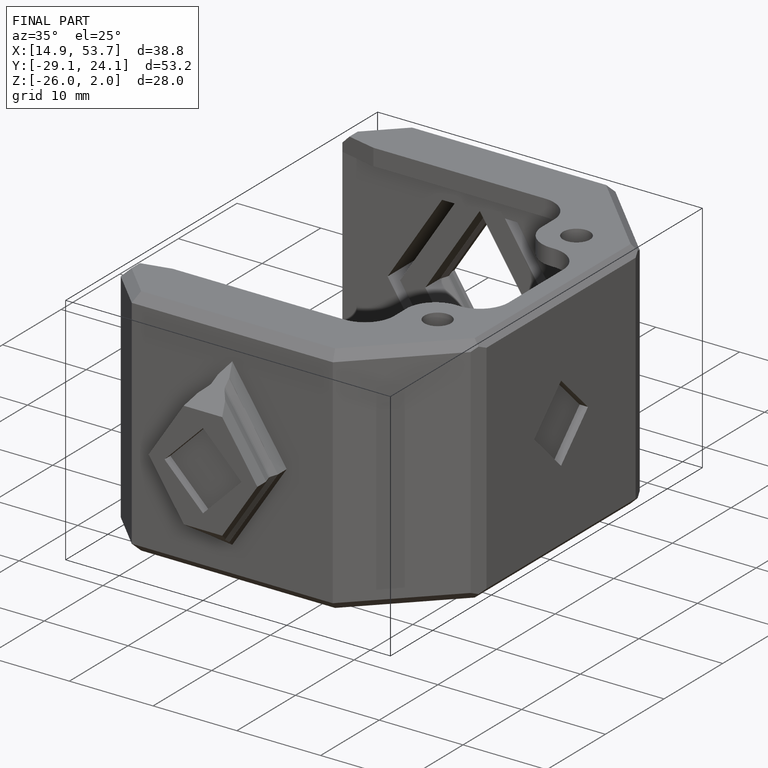
[diagram: finished part — iso view with bounding-box wireframe]
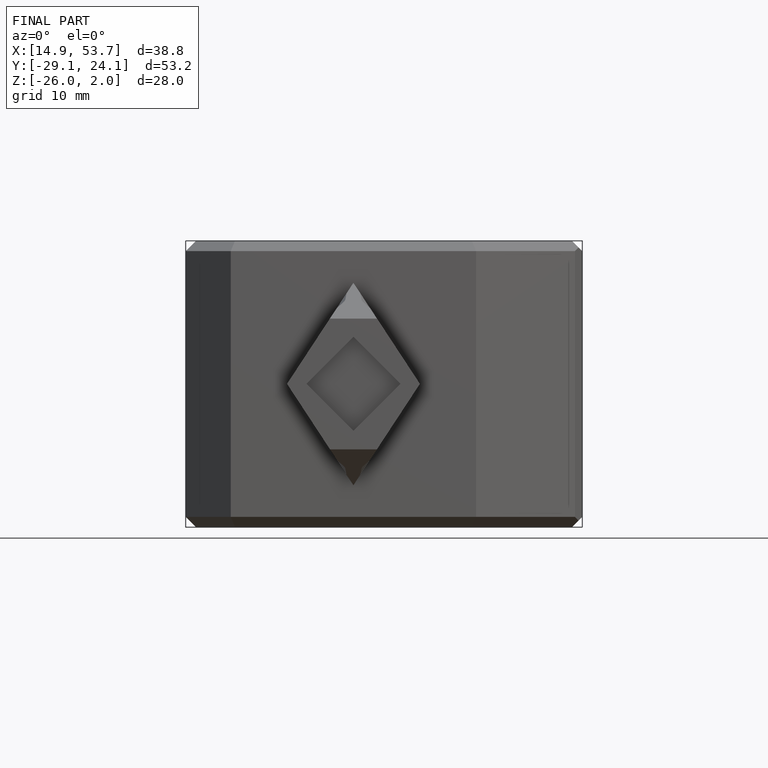
[diagram: finished part — front view with bounding-box wireframe]
